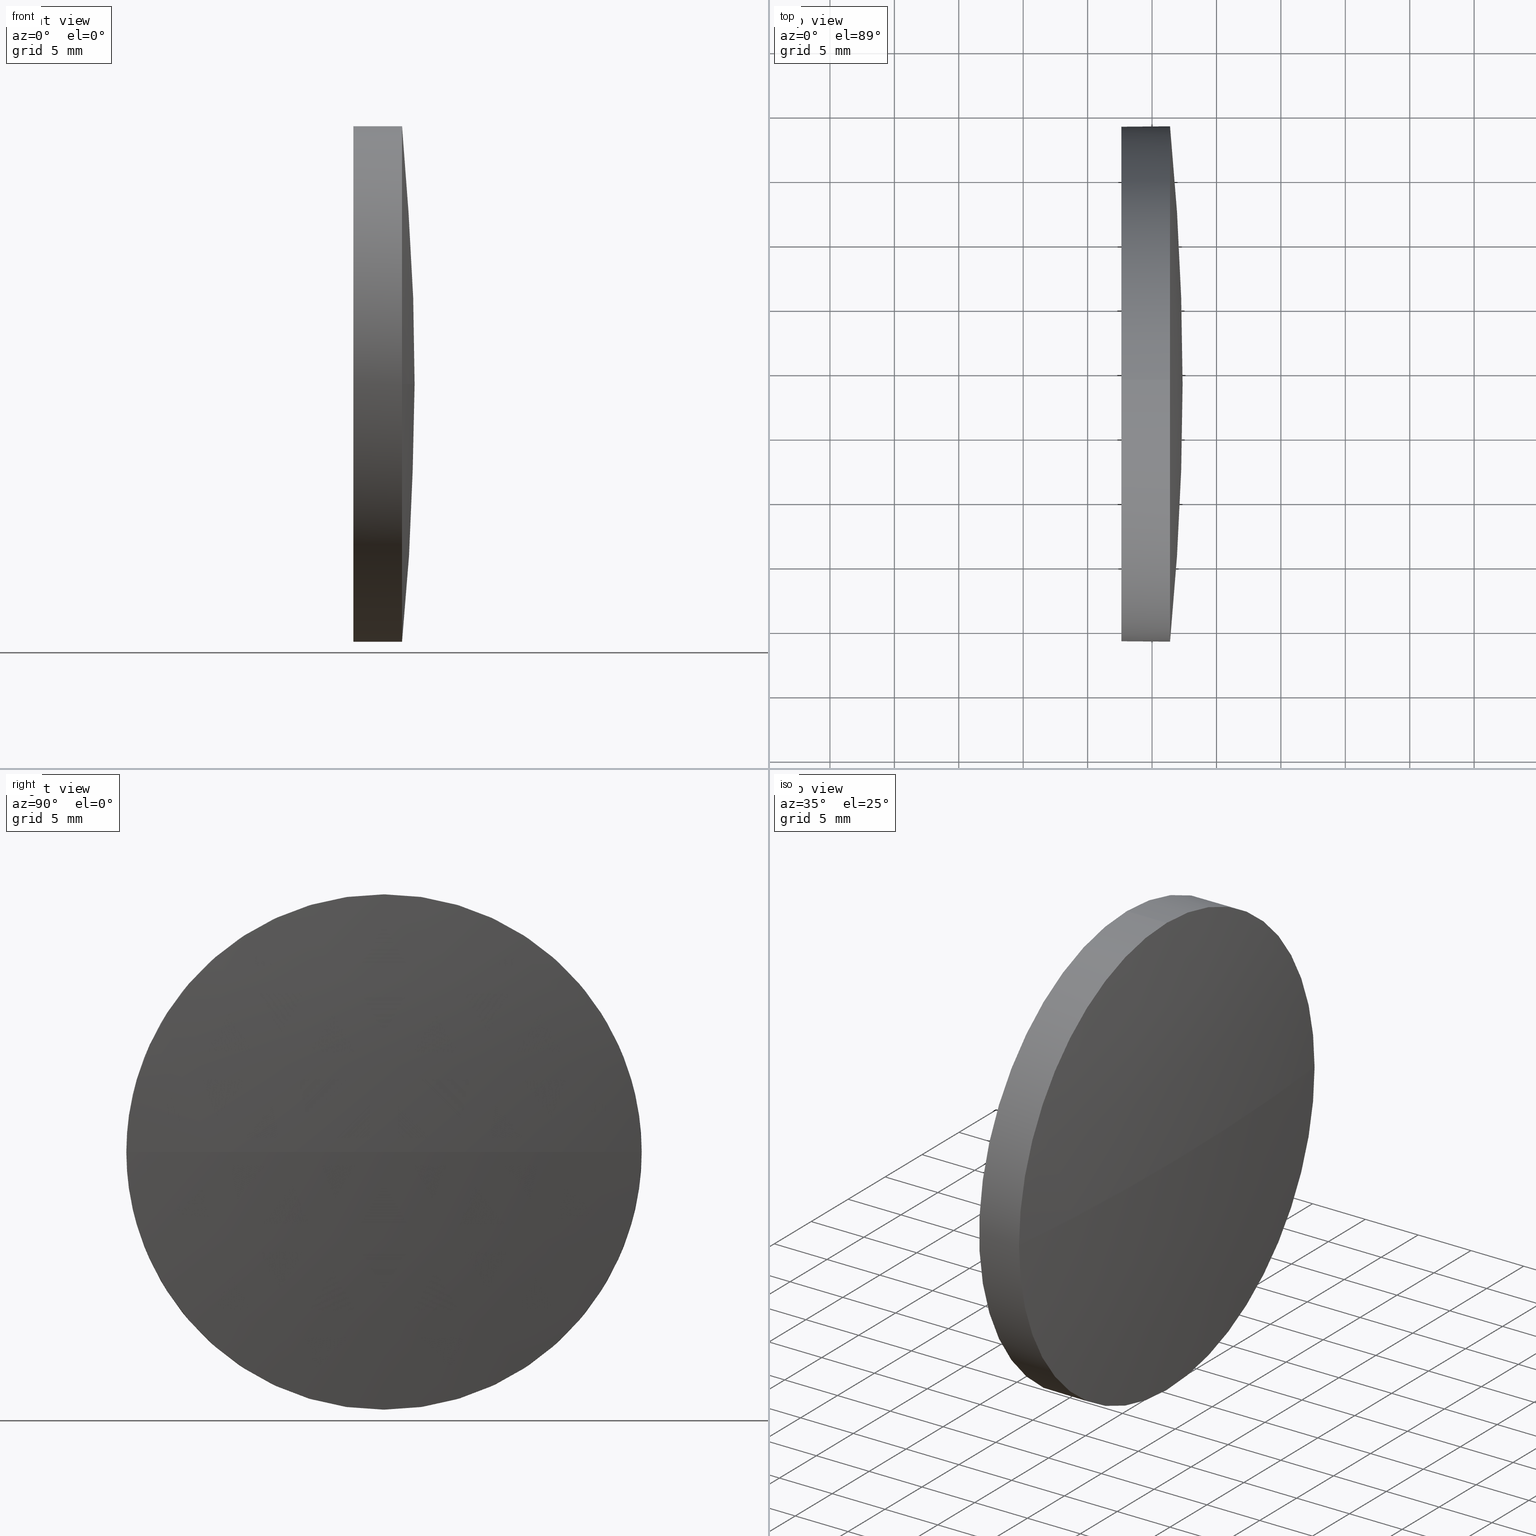
[diagram: canonical four-view strip — front | top / right | iso, engineering-drawing reading convention]
A machine part, canonical four-view strip (front | top / right | iso — engineering-drawing reading convention). The complete STEP part file that produces these views, byte-faithful:
ISO-10303-21;
HEADER;
FILE_DESCRIPTION (( 'STEP AP214' ),
    '1' );
FILE_NAME ('100205.STEP',
    '2019-05-22T08:07:41',
    ( '' ),
    ( '' ),
    'SwSTEP 2.0',
    'SolidWorks 2016',
    '' );
FILE_SCHEMA (( 'AUTOMOTIVE_DESIGN' ));
ENDSEC;

DATA;
#1 = VERTEX_POINT ( 'NONE', #63 ) ;
#2 = PRODUCT_DEFINITION_FORMATION_WITH_SPECIFIED_SOURCE ( '�κ�', '', #173, .NOT_KNOWN. ) ;
#3 = DIRECTION ( 'NONE',  ( 0.0000000000000000000, 0.0000000000000000000, 1.000000000000000000 ) ) ;
#4 = EDGE_CURVE ( 'NONE', #1, #55, #65, .T. ) ;
#5 = ORIENTED_EDGE ( 'NONE', *, *, #176, .F. ) ;
#6 =( LENGTH_UNIT ( ) NAMED_UNIT ( * ) SI_UNIT ( .MILLI., .METRE. ) );
#7 = FILL_AREA_STYLE_COLOUR ( '', #37 ) ;
#8 = CARTESIAN_POINT ( 'NONE',  ( 511.3964132344987100, 118.9984717383097600, 0.0000000000000000000 ) ) ;
#9 = EDGE_LOOP ( 'NONE', ( #49, #174, #111, #24, #114 ) ) ;
#10 = DIRECTION ( 'NONE',  ( 0.0000000000000000000, 0.0000000000000000000, 1.000000000000000000 ) ) ;
#11 = DIRECTION ( 'NONE',  ( -1.000000000000000000, -0.0000000000000000000, -0.0000000000000000000 ) ) ;
#12 = ORIENTED_EDGE ( 'NONE', *, *, #149, .T. ) ;
#13 = APPLICATION_PROTOCOL_DEFINITION ( 'draft international standard', 'automotive_design', 1998, #61 ) ;
#14 =( NAMED_UNIT ( * ) PLANE_ANGLE_UNIT ( ) SI_UNIT ( $, .RADIAN. ) );
#15 = AXIS2_PLACEMENT_3D ( 'NONE', #181, #160, #161 ) ;
#16 = ORIENTED_EDGE ( 'NONE', *, *, #31, .F. ) ;
#17 = EDGE_CURVE ( 'NONE', #32, #78, #76, .T. ) ;
#18 = CARTESIAN_POINT ( 'NONE',  ( 507.6214132344987300, 118.9984717383097600, 0.0000000000000000000 ) ) ;
#19 = PRODUCT_DEFINITION_CONTEXT ( 'detailed design', #61, 'design' ) ;
#20 = SPHERICAL_SURFACE ( 'NONE', #152, 205.6157051282092700 ) ;
#21 = DIRECTION ( 'NONE',  ( -1.000000000000000000, -0.0000000000000000000, -0.0000000000000000000 ) ) ;
#22 = CARTESIAN_POINT ( 'NONE',  ( 306.7557081062893800, 118.9984717383098300, 0.0000000000000000000 ) ) ;
#23 = DIRECTION ( 'NONE',  ( 0.0000000000000000000, 0.0000000000000000000, 1.000000000000000000 ) ) ;
#24 = ORIENTED_EDGE ( 'NONE', *, *, #134, .T. ) ;
#25 = CARTESIAN_POINT ( 'NONE',  ( 511.3964132344987100, 118.9984717383097600, -20.00000000000000400 ) ) ;
#26 = DIRECTION ( 'NONE',  ( 0.0000000000000000000, -1.000000000000000000, 0.0000000000000000000 ) ) ;
#27 =( NAMED_UNIT ( * ) PLANE_ANGLE_UNIT ( ) SI_UNIT ( $, .RADIAN. ) );
#28 = CIRCLE ( 'NONE', #132, 205.6157051282092700 ) ;
#29 =( NAMED_UNIT ( * ) SI_UNIT ( $, .STERADIAN. ) SOLID_ANGLE_UNIT ( ) );
#30 = FACE_OUTER_BOUND ( 'NONE', #120, .T. ) ;
#31 = EDGE_CURVE ( 'NONE', #131, #55, #150, .T. ) ;
#32 = VERTEX_POINT ( 'NONE', #89 ) ;
#33 = STYLED_ITEM ( 'NONE', ( #66 ), #46 ) ;
#34 = CARTESIAN_POINT ( 'NONE',  ( 511.3964132344987100, 118.9984717383097600, 0.0000000000000000000 ) ) ;
#35 = ORIENTED_EDGE ( 'NONE', *, *, #143, .T. ) ;
#36 = DIRECTION ( 'NONE',  ( 0.0000000000000000000, -1.000000000000000000, -1.224646799147353200E-016 ) ) ;
#37 = COLOUR_RGB ( '',1.000000000000000000, 1.000000000000000000, 1.000000000000000000 ) ;
#38 = DIRECTION ( 'NONE',  ( 1.000000000000000000, 0.0000000000000000000, 0.0000000000000000000 ) ) ;
#39 = CARTESIAN_POINT ( 'NONE',  ( 511.3964132344987100, 118.9984717383097600, 0.0000000000000000000 ) ) ;
#40 = CARTESIAN_POINT ( 'NONE',  ( 306.7557081062893800, 118.9984717383098300, 0.0000000000000000000 ) ) ;
#41 = CLOSED_SHELL ( 'NONE', ( #171, #105, #51, #139, #109 ) ) ;
#42 = CARTESIAN_POINT ( 'NONE',  ( 507.6214132344987300, 118.9984717383097600, 0.0000000000000000000 ) ) ;
#43 =( NAMED_UNIT ( * ) PLANE_ANGLE_UNIT ( ) SI_UNIT ( $, .RADIAN. ) );
#44 = VERTEX_POINT ( 'NONE', #50 ) ;
#45 = PRODUCT_DEFINITION ( 'δ֪', '', #2, #19 ) ;
#46 = ADVANCED_BREP_SHAPE_REPRESENTATION ( '100205', ( #71, #15 ), #75 ) ;
#47 = SHAPE_DEFINITION_REPRESENTATION ( #90, #46 ) ;
#48 = ORIENTED_EDGE ( 'NONE', *, *, #17, .T. ) ;
#49 = ORIENTED_EDGE ( 'NONE', *, *, #143, .F. ) ;
#50 = CARTESIAN_POINT ( 'NONE',  ( 511.3964132344987100, 98.99847173830990200, 0.0000000000000000000 ) ) ;
#51 = ADVANCED_FACE ( 'NONE', ( #185 ), #183, .T. ) ;
#52 = DIRECTION ( 'NONE',  ( 0.0000000000000000000, -1.000000000000000000, 0.0000000000000000000 ) ) ;
#53 = PRODUCT_RELATED_PRODUCT_CATEGORY ( 'part', '', ( #173 ) ) ;
#54 = DIRECTION ( 'NONE',  ( 0.0000000000000000000, 0.0000000000000000000, 1.000000000000000000 ) ) ;
#55 = VERTEX_POINT ( 'NONE', #166 ) ;
#56 = DIRECTION ( 'NONE',  ( -1.000000000000000000, 0.0000000000000000000, 0.0000000000000000000 ) ) ;
#57 =( LENGTH_UNIT ( ) NAMED_UNIT ( * ) SI_UNIT ( .MILLI., .METRE. ) );
#58 = FILL_AREA_STYLE ('',( #7 ) ) ;
#59 = FACE_OUTER_BOUND ( 'NONE', #163, .T. ) ;
#60 = EDGE_CURVE ( 'NONE', #156, #44, #74, .T. ) ;
#61 = APPLICATION_CONTEXT ( 'automotive_design' ) ;
#62 = FACE_OUTER_BOUND ( 'NONE', #9, .T. ) ;
#63 = CARTESIAN_POINT ( 'NONE',  ( 511.3964132344987100, 118.9984717383097600, 20.00000000000000400 ) ) ;
#64 = AXIS2_PLACEMENT_3D ( 'NONE', #8, #82, #10 ) ;
#65 = CIRCLE ( 'NONE', #87, 20.00000000000000400 ) ;
#66 = PRESENTATION_STYLE_ASSIGNMENT (( #133 ) ) ;
#67 = DIRECTION ( 'NONE',  ( 0.0000000000000000000, 0.0000000000000000000, 1.000000000000000000 ) ) ;
#68 = CARTESIAN_POINT ( 'NONE',  ( 503.5014820520199200, 118.9984717383097600, 0.0000000000000000000 ) ) ;
#69 = SURFACE_SIDE_STYLE ('',( #95 ) ) ;
#70 = DIRECTION ( 'NONE',  ( -1.000000000000000000, -0.0000000000000000000, -0.0000000000000000000 ) ) ;
#71 = MANIFOLD_SOLID_BREP ( '��ת1', #41 ) ;
#72 = PRODUCT_CONTEXT ( 'NONE', #184, 'mechanical' ) ;
#73 = AXIS2_PLACEMENT_3D ( 'NONE', #68, #11, #54 ) ;
#74 = CIRCLE ( 'NONE', #135, 20.00000000000000400 ) ;
#75 =( GEOMETRIC_REPRESENTATION_CONTEXT ( 3 ) GLOBAL_UNCERTAINTY_ASSIGNED_CONTEXT ( ( #159 ) ) GLOBAL_UNIT_ASSIGNED_CONTEXT ( ( #57, #14, #29 ) ) REPRESENTATION_CONTEXT ( 'NONE', 'WORKASPACE' ) );
#76 = CIRCLE ( 'NONE', #92, 20.00000000000000400 ) ;
#77 = ORIENTED_EDGE ( 'NONE', *, *, #130, .F. ) ;
#78 = VERTEX_POINT ( 'NONE', #168 ) ;
#79 = DIRECTION ( 'NONE',  ( 0.0000000000000000000, 0.0000000000000000000, -1.000000000000000000 ) ) ;
#80 =( GEOMETRIC_REPRESENTATION_CONTEXT ( 3 ) GLOBAL_UNCERTAINTY_ASSIGNED_CONTEXT ( ( #119 ) ) GLOBAL_UNIT_ASSIGNED_CONTEXT ( ( #147, #43, #84 ) ) REPRESENTATION_CONTEXT ( 'NONE', 'WORKASPACE' ) );
#81 = CIRCLE ( 'NONE', #162, 20.00000000000000400 ) ;
#82 = DIRECTION ( 'NONE',  ( -1.000000000000000000, -0.0000000000000000000, -0.0000000000000000000 ) ) ;
#83 = CARTESIAN_POINT ( 'NONE',  ( 511.3964132344987100, 118.9984717383097600, 0.0000000000000000000 ) ) ;
#84 =( NAMED_UNIT ( * ) SI_UNIT ( $, .STERADIAN. ) SOLID_ANGLE_UNIT ( ) );
#85 = ORIENTED_EDGE ( 'NONE', *, *, #60, .F. ) ;
#86 = AXIS2_PLACEMENT_3D ( 'NONE', #127, #38, #94 ) ;
#87 = AXIS2_PLACEMENT_3D ( 'NONE', #34, #21, #118 ) ;
#88 = EDGE_LOOP ( 'NONE', ( #16, #164, #85, #115 ) ) ;
#89 = CARTESIAN_POINT ( 'NONE',  ( 507.6214132344987300, 118.9984717383097600, -20.00000000000000400 ) ) ;
#90 = PRODUCT_DEFINITION_SHAPE ( 'NONE', 'NONE',  #45 ) ;
#91 = CARTESIAN_POINT ( 'NONE',  ( 306.7557081062893800, 118.9984717383098300, 0.0000000000000000000 ) ) ;
#92 = AXIS2_PLACEMENT_3D ( 'NONE', #18, #155, #3 ) ;
#93 = FILL_AREA_STYLE_COLOUR ( '', #103 ) ;
#94 = DIRECTION ( 'NONE',  ( 0.0000000000000000000, 0.0000000000000000000, -1.000000000000000000 ) ) ;
#95 = SURFACE_STYLE_FILL_AREA ( #58 ) ;
#96 = DIRECTION ( 'NONE',  ( -1.000000000000000000, -0.0000000000000000000, -0.0000000000000000000 ) ) ;
#97 = PLANE ( 'NONE',  #86 ) ;
#98 = APPLICATION_PROTOCOL_DEFINITION ( 'draft international standard', 'automotive_design', 1998, #184 ) ;
#99 = SURFACE_SIDE_STYLE ('',( #136 ) ) ;
#100 = AXIS2_PLACEMENT_3D ( 'NONE', #172, #96, #67 ) ;
#101 = CYLINDRICAL_SURFACE ( 'NONE', #100, 20.00000000000000400 ) ;
#102 = VECTOR ( 'NONE', #70, 1000.000000000000000 ) ;
#103 = COLOUR_RGB ( '',1.000000000000000000, 1.000000000000000000, 1.000000000000000000 ) ;
#104 = UNCERTAINTY_MEASURE_WITH_UNIT (LENGTH_MEASURE( 1.000000000000000100E-005 ), #6, 'distance_accuracy_value', 'NONE');
#105 = ADVANCED_FACE ( 'NONE', ( #59 ), #20, .T. ) ;
#106 = ORIENTED_EDGE ( 'NONE', *, *, #134, .F. ) ;
#107 = AXIS2_PLACEMENT_3D ( 'NONE', #22, #138, #52 ) ;
#108 = DIRECTION ( 'NONE',  ( 0.0000000000000000000, 0.0000000000000000000, 1.000000000000000000 ) ) ;
#109 = ADVANCED_FACE ( 'NONE', ( #30 ), #97, .F. ) ;
#110 = DIRECTION ( 'NONE',  ( -1.000000000000000000, -0.0000000000000000000, -0.0000000000000000000 ) ) ;
#111 = ORIENTED_EDGE ( 'NONE', *, *, #176, .T. ) ;
#112 = STYLED_ITEM ( 'NONE', ( #151 ), #71 ) ;
#113 = ORIENTED_EDGE ( 'NONE', *, *, #4, .F. ) ;
#114 = ORIENTED_EDGE ( 'NONE', *, *, #17, .F. ) ;
#115 = ORIENTED_EDGE ( 'NONE', *, *, #154, .F. ) ;
#116 = PRESENTATION_LAYER_ASSIGNMENT (  '', '', ( #33 ) ) ;
#117 = ORIENTED_EDGE ( 'NONE', *, *, #4, .T. ) ;
#118 = DIRECTION ( 'NONE',  ( 0.0000000000000000000, 0.0000000000000000000, 1.000000000000000000 ) ) ;
#119 = UNCERTAINTY_MEASURE_WITH_UNIT (LENGTH_MEASURE( 1.000000000000000100E-005 ), #147, 'distance_accuracy_value', 'NONE');
#120 = EDGE_LOOP ( 'NONE', ( #12, #48 ) ) ;
#121 = AXIS2_PLACEMENT_3D ( 'NONE', #91, #122, #36 ) ;
#122 = DIRECTION ( 'NONE',  ( 0.0000000000000000000, -1.224646799147353200E-016, 1.000000000000000000 ) ) ;
#123 = CARTESIAN_POINT ( 'NONE',  ( 306.7557081062893800, 118.9984717383098300, 0.0000000000000000000 ) ) ;
#124 = DIRECTION ( 'NONE',  ( 0.0000000000000000000, 0.0000000000000000000, 1.000000000000000000 ) ) ;
#125 = EDGE_LOOP ( 'NONE', ( #186, #35, #141, #106, #117 ) ) ;
#126 = CARTESIAN_POINT ( 'NONE',  ( 512.3714132344986200, 118.9984717383098200, 0.0000000000000000000 ) ) ;
#127 = CARTESIAN_POINT ( 'NONE',  ( 507.6214132344987300, 118.9984717383097600, 0.0000000000000000000 ) ) ;
#128 = DIRECTION ( 'NONE',  ( -1.000000000000000000, -0.0000000000000000000, -0.0000000000000000000 ) ) ;
#129 = FILL_AREA_STYLE ('',( #93 ) ) ;
#130 = EDGE_CURVE ( 'NONE', #131, #44, #28, .T. ) ;
#131 = VERTEX_POINT ( 'NONE', #126 ) ;
#132 = AXIS2_PLACEMENT_3D ( 'NONE', #123, #79, #56 ) ;
#133 = SURFACE_STYLE_USAGE ( .BOTH. , #99 ) ;
#134 = EDGE_CURVE ( 'NONE', #1, #78, #145, .T. ) ;
#135 = AXIS2_PLACEMENT_3D ( 'NONE', #83, #110, #108 ) ;
#136 = SURFACE_STYLE_FILL_AREA ( #129 ) ;
#137 = CYLINDRICAL_SURFACE ( 'NONE', #73, 20.00000000000000400 ) ;
#138 = DIRECTION ( 'NONE',  ( 0.0000000000000000000, 0.0000000000000000000, 1.000000000000000000 ) ) ;
#139 = ADVANCED_FACE ( 'NONE', ( #62 ), #137, .T. ) ;
#140 = CARTESIAN_POINT ( 'NONE',  ( 503.5014820520199200, 118.9984717383097600, -20.00000000000000400 ) ) ;
#141 = ORIENTED_EDGE ( 'NONE', *, *, #149, .F. ) ;
#142 = PRESENTATION_LAYER_ASSIGNMENT (  '', '', ( #112 ) ) ;
#143 = EDGE_CURVE ( 'NONE', #156, #32, #178, .T. ) ;
#144 = CARTESIAN_POINT ( 'NONE',  ( 503.5014820520199200, 118.9984717383097600, 20.00000000000000400 ) ) ;
#145 = LINE ( 'NONE', #144, #175 ) ;
#146 = DIRECTION ( 'NONE',  ( -1.000000000000000000, -0.0000000000000000000, -0.0000000000000000000 ) ) ;
#147 =( LENGTH_UNIT ( ) NAMED_UNIT ( * ) SI_UNIT ( .MILLI., .METRE. ) );
#148 = MECHANICAL_DESIGN_GEOMETRIC_PRESENTATION_REPRESENTATION (  '', ( #112 ), #157 ) ;
#149 = EDGE_CURVE ( 'NONE', #78, #32, #81, .T. ) ;
#150 = CIRCLE ( 'NONE', #121, 205.6157051282092700 ) ;
#151 = PRESENTATION_STYLE_ASSIGNMENT (( #169 ) ) ;
#152 = AXIS2_PLACEMENT_3D ( 'NONE', #40, #23, #26 ) ;
#153 = ORIENTED_EDGE ( 'NONE', *, *, #31, .T. ) ;
#154 = EDGE_CURVE ( 'NONE', #55, #156, #180, .T. ) ;
#155 = DIRECTION ( 'NONE',  ( -1.000000000000000000, -0.0000000000000000000, -0.0000000000000000000 ) ) ;
#156 = VERTEX_POINT ( 'NONE', #25 ) ;
#157 =( GEOMETRIC_REPRESENTATION_CONTEXT ( 3 ) GLOBAL_UNCERTAINTY_ASSIGNED_CONTEXT ( ( #104 ) ) GLOBAL_UNIT_ASSIGNED_CONTEXT ( ( #6, #27, #179 ) ) REPRESENTATION_CONTEXT ( 'NONE', 'WORKASPACE' ) );
#158 = DIRECTION ( 'NONE',  ( 0.0000000000000000000, 0.0000000000000000000, 1.000000000000000000 ) ) ;
#159 = UNCERTAINTY_MEASURE_WITH_UNIT (LENGTH_MEASURE( 1.000000000000000100E-005 ), #57, 'distance_accuracy_value', 'NONE');
#160 = DIRECTION ( 'NONE',  ( 0.0000000000000000000, 0.0000000000000000000, 1.000000000000000000 ) ) ;
#161 = DIRECTION ( 'NONE',  ( 1.000000000000000000, 0.0000000000000000000, 0.0000000000000000000 ) ) ;
#162 = AXIS2_PLACEMENT_3D ( 'NONE', #42, #146, #158 ) ;
#163 = EDGE_LOOP ( 'NONE', ( #77, #153, #113, #5 ) ) ;
#164 = ORIENTED_EDGE ( 'NONE', *, *, #130, .T. ) ;
#165 = MECHANICAL_DESIGN_GEOMETRIC_PRESENTATION_REPRESENTATION (  '', ( #33 ), #80 ) ;
#166 = CARTESIAN_POINT ( 'NONE',  ( 511.3964132344987100, 138.9984717383096900, 2.449293598294687200E-015 ) ) ;
#167 = CIRCLE ( 'NONE', #64, 20.00000000000000400 ) ;
#168 = CARTESIAN_POINT ( 'NONE',  ( 507.6214132344987300, 118.9984717383097600, 20.00000000000000400 ) ) ;
#169 = SURFACE_STYLE_USAGE ( .BOTH. , #69 ) ;
#170 = AXIS2_PLACEMENT_3D ( 'NONE', #39, #182, #124 ) ;
#171 = ADVANCED_FACE ( 'NONE', ( #177 ), #101, .T. ) ;
#172 = CARTESIAN_POINT ( 'NONE',  ( 503.5014820520199200, 118.9984717383097600, 0.0000000000000000000 ) ) ;
#173 = PRODUCT ( '100205', '100205', '', ( #72 ) ) ;
#174 = ORIENTED_EDGE ( 'NONE', *, *, #60, .T. ) ;
#175 = VECTOR ( 'NONE', #128, 1000.000000000000000 ) ;
#176 = EDGE_CURVE ( 'NONE', #44, #1, #167, .T. ) ;
#177 = FACE_OUTER_BOUND ( 'NONE', #125, .T. ) ;
#178 = LINE ( 'NONE', #140, #102 ) ;
#179 =( NAMED_UNIT ( * ) SI_UNIT ( $, .STERADIAN. ) SOLID_ANGLE_UNIT ( ) );
#180 = CIRCLE ( 'NONE', #170, 20.00000000000000400 ) ;
#181 = CARTESIAN_POINT ( 'NONE',  ( 0.0000000000000000000, 0.0000000000000000000, 0.0000000000000000000 ) ) ;
#182 = DIRECTION ( 'NONE',  ( -1.000000000000000000, -0.0000000000000000000, -0.0000000000000000000 ) ) ;
#183 = SPHERICAL_SURFACE ( 'NONE', #107, 205.6157051282092700 ) ;
#184 = APPLICATION_CONTEXT ( 'automotive_design' ) ;
#185 = FACE_OUTER_BOUND ( 'NONE', #88, .T. ) ;
#186 = ORIENTED_EDGE ( 'NONE', *, *, #154, .T. ) ;
ENDSEC;
END-ISO-10303-21;
